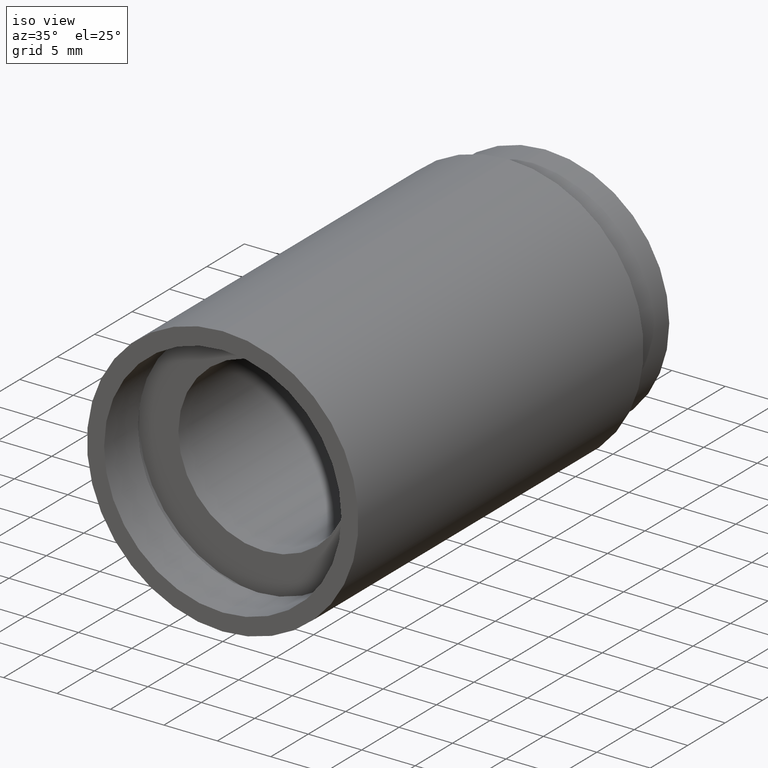
[diagram: clean part render]
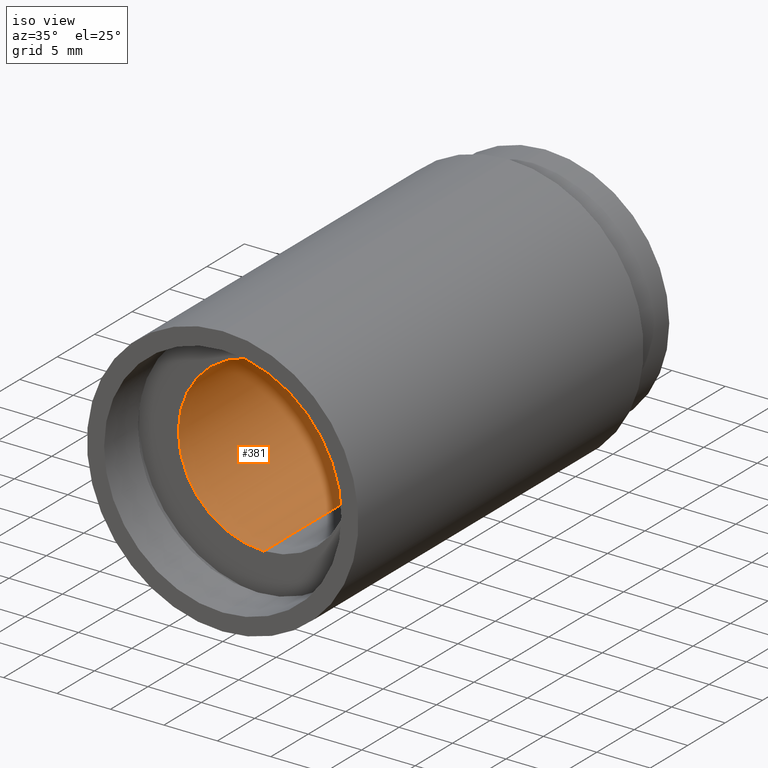
[diagram: same view with one face highlighted and labeled with its STEP entity id]
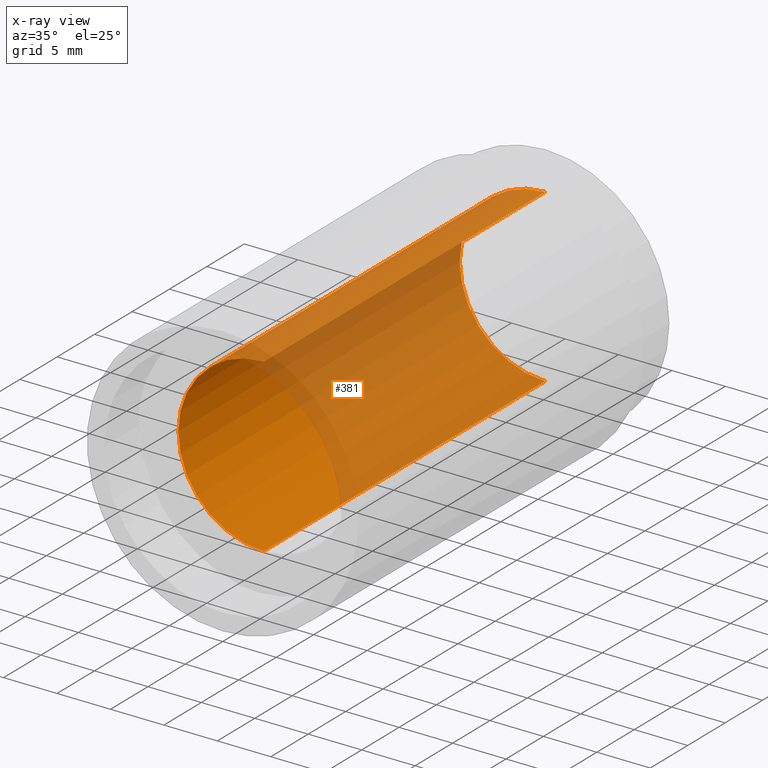
[diagram: x-ray of the same camera — body ghosted, the highlighted face saturated]
A machine part, iso view. The second image highlights one B-rep face of the part: STEP entity #381.
The next image is the same camera in x-ray: the body ghosted, the highlighted face saturated — about 66% of this face is hidden behind the body in this view.
In plain terms, the highlighted cylindrical surface (partial cylindrical patch) has radius 8 mm, axis along (-0, 1, -0).
Its self-contained STEP definition (entity closure, byte-faithful):
#2 = DIRECTION ( 'NONE',  ( -0.0000000000000000000, 1.000000000000000000, -0.0000000000000000000 ) ) ;
#8 = DIRECTION ( 'NONE',  ( 0.0000000000000000000, 0.0000000000000000000, 1.000000000000000000 ) ) ;
#21 = EDGE_LOOP ( 'NONE', ( #472, #150, #605, #256 ) ) ;
#23 = EDGE_CURVE ( 'NONE', #299, #200, #249, .T. ) ;
#51 = VERTEX_POINT ( 'NONE', #606 ) ;
#60 = CARTESIAN_POINT ( 'NONE',  ( 0.0000000000000000000, 161.3761669434274500, 0.0000000000000000000 ) ) ;
#89 = AXIS2_PLACEMENT_3D ( 'NONE', #60, #2, #8 ) ;
#97 = CARTESIAN_POINT ( 'NONE',  ( 0.0000000000000000000, 161.3761669434274500, 8.000000000000019500 ) ) ;
#101 = CYLINDRICAL_SURFACE ( 'NONE', #89, 8.000000000000019500 ) ;
#150 = ORIENTED_EDGE ( 'NONE', *, *, #23, .T. ) ;
#163 = EDGE_CURVE ( 'NONE', #51, #416, #502, .T. ) ;
#170 = CIRCLE ( 'NONE', #529, 8.000000000000019500 ) ;
#178 = CARTESIAN_POINT ( 'NONE',  ( 0.0000000000000000000, 43.09999999999998700, 8.000000000000019500 ) ) ;
#198 = DIRECTION ( 'NONE',  ( -0.0000000000000000000, 1.000000000000000000, -0.0000000000000000000 ) ) ;
#200 = VERTEX_POINT ( 'NONE', #209 ) ;
#209 = CARTESIAN_POINT ( 'NONE',  ( 9.797174393178849300E-016, 43.09999999999998700, -8.000000000000019500 ) ) ;
#226 = CARTESIAN_POINT ( 'NONE',  ( 0.0000000000000000000, 43.09999999999998700, 0.0000000000000000000 ) ) ;
#232 = DIRECTION ( 'NONE',  ( -0.0000000000000000000, 1.000000000000000000, -0.0000000000000000000 ) ) ;
#249 = LINE ( 'NONE', #516, #325 ) ;
#256 = ORIENTED_EDGE ( 'NONE', *, *, #163, .F. ) ;
#277 = DIRECTION ( 'NONE',  ( 0.0000000000000000000, 0.0000000000000000000, 1.000000000000000000 ) ) ;
#278 = DIRECTION ( 'NONE',  ( 0.0000000000000000000, 0.0000000000000000000, 1.000000000000000000 ) ) ;
#299 = VERTEX_POINT ( 'NONE', #360 ) ;
#325 = VECTOR ( 'NONE', #198, 1000.000000000000000 ) ;
#334 = AXIS2_PLACEMENT_3D ( 'NONE', #226, #232, #278 ) ;
#360 = CARTESIAN_POINT ( 'NONE',  ( 9.797174393178849300E-016, 5.499999999999976900, -8.000000000000019500 ) ) ;
#366 = CARTESIAN_POINT ( 'NONE',  ( 0.0000000000000000000, 5.499999999999976900, 0.0000000000000000000 ) ) ;
#381 = ADVANCED_FACE ( 'NONE', ( #611 ), #101, .F. ) ;
#416 = VERTEX_POINT ( 'NONE', #178 ) ;
#418 = EDGE_CURVE ( 'NONE', #299, #51, #170, .T. ) ;
#434 = VECTOR ( 'NONE', #577, 1000.000000000000000 ) ;
#450 = EDGE_CURVE ( 'NONE', #200, #416, #498, .T. ) ;
#472 = ORIENTED_EDGE ( 'NONE', *, *, #418, .F. ) ;
#498 = CIRCLE ( 'NONE', #334, 8.000000000000019500 ) ;
#502 = LINE ( 'NONE', #97, #434 ) ;
#516 = CARTESIAN_POINT ( 'NONE',  ( 9.797174393178849300E-016, 161.3761669434274500, -8.000000000000019500 ) ) ;
#529 = AXIS2_PLACEMENT_3D ( 'NONE', #366, #550, #277 ) ;
#550 = DIRECTION ( 'NONE',  ( -0.0000000000000000000, 1.000000000000000000, -0.0000000000000000000 ) ) ;
#577 = DIRECTION ( 'NONE',  ( -0.0000000000000000000, 1.000000000000000000, -0.0000000000000000000 ) ) ;
#605 = ORIENTED_EDGE ( 'NONE', *, *, #450, .T. ) ;
#606 = CARTESIAN_POINT ( 'NONE',  ( 0.0000000000000000000, 5.499999999999976900, 8.000000000000019500 ) ) ;
#611 = FACE_OUTER_BOUND ( 'NONE', #21, .T. ) ;